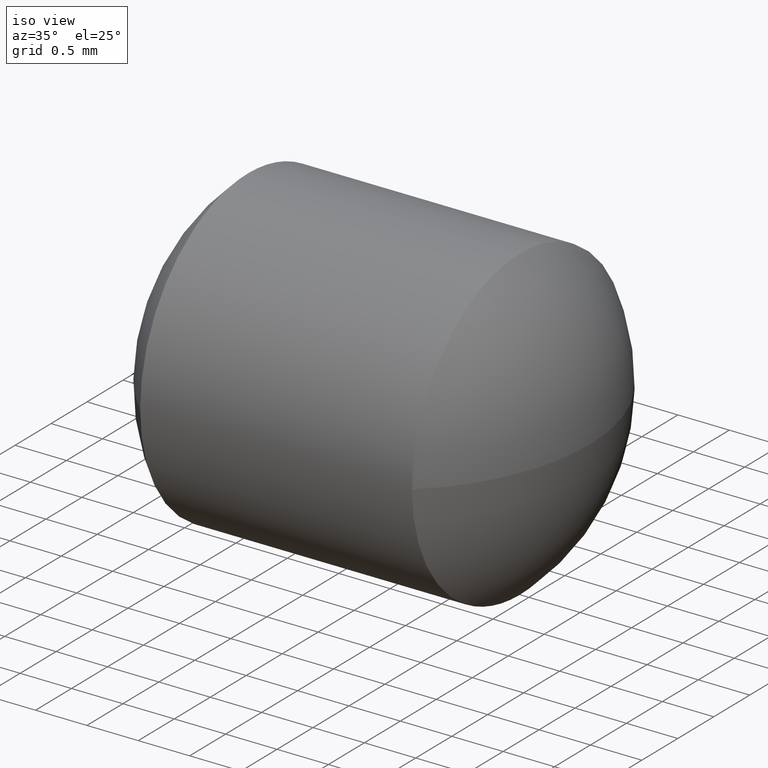
[diagram: clean part render]
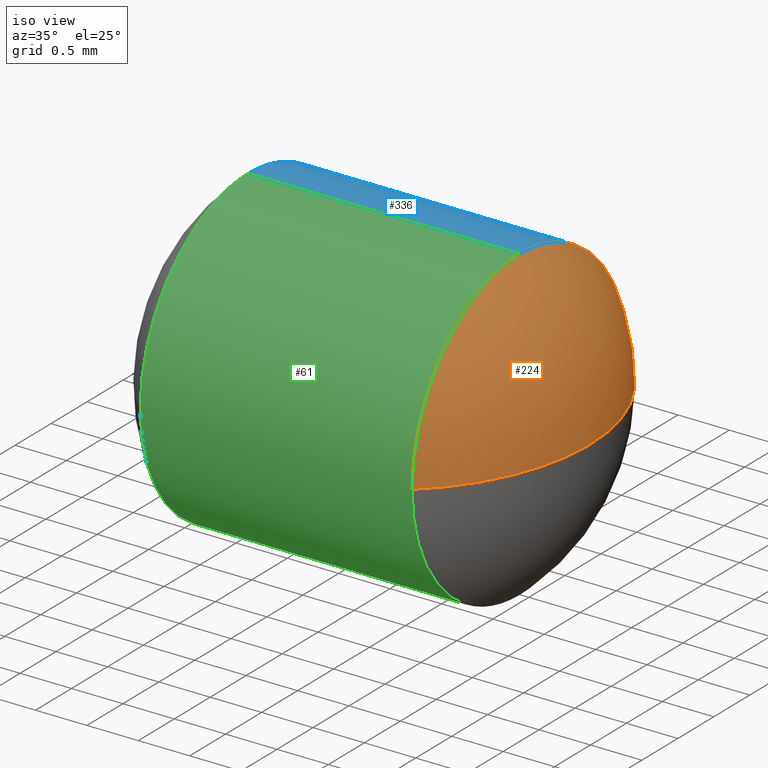
[diagram: same view with three faces highlighted in distinct colors, each labeled with its STEP entity id]
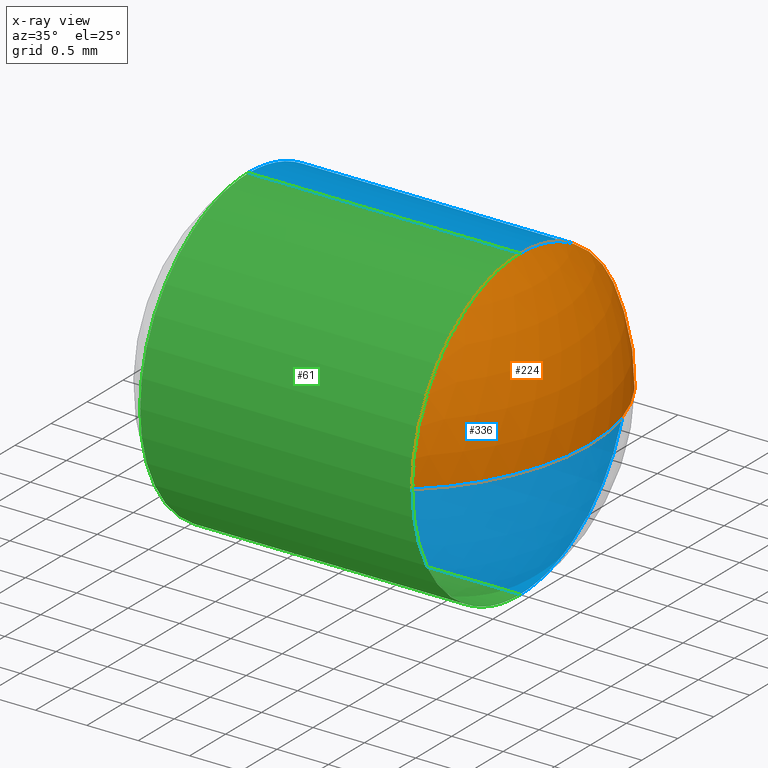
[diagram: x-ray of the same camera — body ghosted, the three highlighted faces saturated]
A machine part, iso view with three faces highlighted in distinct colors.
The next image is the same camera in x-ray (body ghosted, the three faces saturated) — at least one of them is partly hidden behind the body in this view.
Their STEP definitions:

[orange] entity #224 — the highlighted spherical surface has radius 2 mm.
#7 = CIRCLE ( 'NONE', #316, 2.000000000000001800 ) ;
#14 = VERTEX_POINT ( 'NONE', #214 ) ;
#16 = SPHERICAL_SURFACE ( 'NONE', #78, 1.999999999999992200 ) ;
#25 = CARTESIAN_POINT ( 'NONE',  ( 231.6993485743448400, 133.3448637497280600, 0.0000000000000000000 ) ) ;
#27 = VERTEX_POINT ( 'NONE', #340 ) ;
#28 = CARTESIAN_POINT ( 'NONE',  ( 229.6993485743448400, 133.3448637497280600, 0.0000000000000000000 ) ) ;
#57 = CARTESIAN_POINT ( 'NONE',  ( 229.6993485743448400, 133.3448637497280600, 0.0000000000000000000 ) ) ;
#62 = DIRECTION ( 'NONE',  ( 0.0000000000000000000, 1.000000000000000000, 1.224646799147347500E-016 ) ) ;
#72 = CIRCLE ( 'NONE', #73, 1.500000000000029100 ) ;
#73 = AXIS2_PLACEMENT_3D ( 'NONE', #298, #134, #188 ) ;
#75 = CIRCLE ( 'NONE', #287, 2.000000000000001800 ) ;
#78 = AXIS2_PLACEMENT_3D ( 'NONE', #28, #235, #109 ) ;
#89 = CARTESIAN_POINT ( 'NONE',  ( 229.6993485743448400, 133.3448637497280600, 0.0000000000000000000 ) ) ;
#102 = VERTEX_POINT ( 'NONE', #25 ) ;
#107 = ORIENTED_EDGE ( 'NONE', *, *, #237, .F. ) ;
#109 = DIRECTION ( 'NONE',  ( 0.0000000000000000000, 1.000000000000000000, 0.0000000000000000000 ) ) ;
#118 = DIRECTION ( 'NONE',  ( 1.000000000000000000, 0.0000000000000000000, 0.0000000000000000000 ) ) ;
#134 = DIRECTION ( 'NONE',  ( -1.000000000000000000, -0.0000000000000000000, -0.0000000000000000000 ) ) ;
#143 = ORIENTED_EDGE ( 'NONE', *, *, #240, .F. ) ;
#145 = CARTESIAN_POINT ( 'NONE',  ( 231.0222242298770800, 133.3448637497280600, 0.0000000000000000000 ) ) ;
#167 = CARTESIAN_POINT ( 'NONE',  ( 231.0222242298770800, 131.8448637497280300, -1.836970198721071100E-016 ) ) ;
#169 = DIRECTION ( 'NONE',  ( 0.0000000000000000000, 0.0000000000000000000, 1.000000000000000000 ) ) ;
#188 = DIRECTION ( 'NONE',  ( 0.0000000000000000000, 0.0000000000000000000, 1.000000000000000000 ) ) ;
#195 = ORIENTED_EDGE ( 'NONE', *, *, #259, .F. ) ;
#214 = CARTESIAN_POINT ( 'NONE',  ( 231.0222242298770800, 134.8448637497280900, 0.0000000000000000000 ) ) ;
#224 = ADVANCED_FACE ( 'NONE', ( #297 ), #16, .T. ) ;
#235 = DIRECTION ( 'NONE',  ( -0.0000000000000000000, 0.0000000000000000000, -1.000000000000000000 ) ) ;
#237 = EDGE_CURVE ( 'NONE', #27, #14, #72, .T. ) ;
#240 = EDGE_CURVE ( 'NONE', #102, #315, #7, .T. ) ;
#244 = EDGE_LOOP ( 'NONE', ( #143, #265, #107, #195 ) ) ;
#245 = CIRCLE ( 'NONE', #255, 1.500000000000029100 ) ;
#255 = AXIS2_PLACEMENT_3D ( 'NONE', #145, #270, #169 ) ;
#259 = EDGE_CURVE ( 'NONE', #315, #27, #245, .T. ) ;
#265 = ORIENTED_EDGE ( 'NONE', *, *, #331, .T. ) ;
#270 = DIRECTION ( 'NONE',  ( -1.000000000000000000, -0.0000000000000000000, -0.0000000000000000000 ) ) ;
#271 = DIRECTION ( 'NONE',  ( -0.0000000000000000000, 0.0000000000000000000, 1.000000000000000000 ) ) ;
#275 = DIRECTION ( 'NONE',  ( 0.0000000000000000000, 1.224646799147353200E-016, -1.000000000000000000 ) ) ;
#287 = AXIS2_PLACEMENT_3D ( 'NONE', #89, #271, #118 ) ;
#297 = FACE_OUTER_BOUND ( 'NONE', #244, .T. ) ;
#298 = CARTESIAN_POINT ( 'NONE',  ( 231.0222242298770800, 133.3448637497280600, 0.0000000000000000000 ) ) ;
#315 = VERTEX_POINT ( 'NONE', #167 ) ;
#316 = AXIS2_PLACEMENT_3D ( 'NONE', #57, #275, #62 ) ;
#331 = EDGE_CURVE ( 'NONE', #102, #14, #75, .T. ) ;
#340 = CARTESIAN_POINT ( 'NONE',  ( 231.0222242298770800, 133.3448637497280600, 1.500000000000029100 ) ) ;

[blue] entity #336 — the highlighted cylindrical surface (partial cylindrical patch) has radius 1.5 mm, axis along (-1, -0, -0).
#1 = DIRECTION ( 'NONE',  ( -1.000000000000000000, -0.0000000000000000000, -0.0000000000000000000 ) ) ;
#11 = CIRCLE ( 'NONE', #92, 1.500000000000029100 ) ;
#14 = VERTEX_POINT ( 'NONE', #214 ) ;
#15 = DIRECTION ( 'NONE',  ( 0.0000000000000000000, 0.0000000000000000000, 1.000000000000000000 ) ) ;
#22 = EDGE_LOOP ( 'NONE', ( #26, #216, #122, #64, #342, #182 ) ) ;
#24 = AXIS2_PLACEMENT_3D ( 'NONE', #345, #79, #82 ) ;
#26 = ORIENTED_EDGE ( 'NONE', *, *, #237, .T. ) ;
#27 = VERTEX_POINT ( 'NONE', #340 ) ;
#38 = DIRECTION ( 'NONE',  ( -1.000000000000000000, -0.0000000000000000000, -0.0000000000000000000 ) ) ;
#41 = CARTESIAN_POINT ( 'NONE',  ( 228.3764729188125400, 133.3448637497280600, 0.0000000000000000000 ) ) ;
#59 = CARTESIAN_POINT ( 'NONE',  ( 228.3764729188125400, 133.3448637497280600, -1.500000000000001300 ) ) ;
#64 = ORIENTED_EDGE ( 'NONE', *, *, #319, .F. ) ;
#72 = CIRCLE ( 'NONE', #73, 1.500000000000029100 ) ;
#73 = AXIS2_PLACEMENT_3D ( 'NONE', #298, #134, #188 ) ;
#79 = DIRECTION ( 'NONE',  ( -1.000000000000000000, -0.0000000000000000000, -0.0000000000000000000 ) ) ;
#80 = VECTOR ( 'NONE', #1, 1000.000000000000000 ) ;
#82 = DIRECTION ( 'NONE',  ( 0.0000000000000000000, 0.0000000000000000000, 1.000000000000000000 ) ) ;
#85 = CIRCLE ( 'NONE', #261, 1.500000000000001300 ) ;
#90 = VECTOR ( 'NONE', #131, 1000.000000000000000 ) ;
#92 = AXIS2_PLACEMENT_3D ( 'NONE', #93, #277, #194 ) ;
#93 = CARTESIAN_POINT ( 'NONE',  ( 231.0222242298770800, 133.3448637497280600, 0.0000000000000000000 ) ) ;
#119 = DIRECTION ( 'NONE',  ( 0.0000000000000000000, 0.0000000000000000000, 1.000000000000000000 ) ) ;
#122 = ORIENTED_EDGE ( 'NONE', *, *, #205, .T. ) ;
#131 = DIRECTION ( 'NONE',  ( -1.000000000000000000, -0.0000000000000000000, -0.0000000000000000000 ) ) ;
#134 = DIRECTION ( 'NONE',  ( -1.000000000000000000, -0.0000000000000000000, -0.0000000000000000000 ) ) ;
#135 = VERTEX_POINT ( 'NONE', #326 ) ;
#138 = CARTESIAN_POINT ( 'NONE',  ( 231.0222242298770800, 133.3448637497280600, -1.500000000000029300 ) ) ;
#140 = DIRECTION ( 'NONE',  ( -1.000000000000000000, -0.0000000000000000000, -0.0000000000000000000 ) ) ;
#153 = LINE ( 'NONE', #327, #80 ) ;
#156 = CYLINDRICAL_SURFACE ( 'NONE', #338, 1.500000000000015100 ) ;
#161 = LINE ( 'NONE', #293, #90 ) ;
#171 = CARTESIAN_POINT ( 'NONE',  ( 227.5435306962462500, 133.3448637497280600, 0.0000000000000000000 ) ) ;
#182 = ORIENTED_EDGE ( 'NONE', *, *, #222, .F. ) ;
#188 = DIRECTION ( 'NONE',  ( 0.0000000000000000000, 0.0000000000000000000, 1.000000000000000000 ) ) ;
#191 = EDGE_CURVE ( 'NONE', #135, #278, #276, .T. ) ;
#194 = DIRECTION ( 'NONE',  ( 0.0000000000000000000, 0.0000000000000000000, 1.000000000000000000 ) ) ;
#199 = FACE_OUTER_BOUND ( 'NONE', #22, .T. ) ;
#205 = EDGE_CURVE ( 'NONE', #341, #266, #161, .T. ) ;
#214 = CARTESIAN_POINT ( 'NONE',  ( 231.0222242298770800, 134.8448637497280900, 0.0000000000000000000 ) ) ;
#216 = ORIENTED_EDGE ( 'NONE', *, *, #284, .T. ) ;
#220 = CARTESIAN_POINT ( 'NONE',  ( 228.3764729188125400, 134.8448637497280600, 0.0000000000000000000 ) ) ;
#222 = EDGE_CURVE ( 'NONE', #27, #135, #153, .T. ) ;
#237 = EDGE_CURVE ( 'NONE', #27, #14, #72, .T. ) ;
#261 = AXIS2_PLACEMENT_3D ( 'NONE', #41, #38, #119 ) ;
#266 = VERTEX_POINT ( 'NONE', #59 ) ;
#276 = CIRCLE ( 'NONE', #24, 1.500000000000001300 ) ;
#277 = DIRECTION ( 'NONE',  ( -1.000000000000000000, -0.0000000000000000000, -0.0000000000000000000 ) ) ;
#278 = VERTEX_POINT ( 'NONE', #220 ) ;
#284 = EDGE_CURVE ( 'NONE', #14, #341, #11, .T. ) ;
#293 = CARTESIAN_POINT ( 'NONE',  ( 227.5435306962462500, 133.3448637497280600, -1.500000000000015100 ) ) ;
#298 = CARTESIAN_POINT ( 'NONE',  ( 231.0222242298770800, 133.3448637497280600, 0.0000000000000000000 ) ) ;
#319 = EDGE_CURVE ( 'NONE', #278, #266, #85, .T. ) ;
#326 = CARTESIAN_POINT ( 'NONE',  ( 228.3764729188125400, 133.3448637497280600, 1.500000000000001300 ) ) ;
#327 = CARTESIAN_POINT ( 'NONE',  ( 227.5435306962462500, 133.3448637497280600, 1.500000000000015100 ) ) ;
#336 = ADVANCED_FACE ( 'NONE', ( #199 ), #156, .T. ) ;
#338 = AXIS2_PLACEMENT_3D ( 'NONE', #171, #140, #15 ) ;
#340 = CARTESIAN_POINT ( 'NONE',  ( 231.0222242298770800, 133.3448637497280600, 1.500000000000029100 ) ) ;
#341 = VERTEX_POINT ( 'NONE', #138 ) ;
#342 = ORIENTED_EDGE ( 'NONE', *, *, #191, .F. ) ;
#345 = CARTESIAN_POINT ( 'NONE',  ( 228.3764729188125400, 133.3448637497280600, 0.0000000000000000000 ) ) ;

[green] entity #61 — the highlighted cylindrical surface (partial cylindrical patch) has radius 1.5 mm, axis along (-1, -0, -0).
#1 = DIRECTION ( 'NONE',  ( -1.000000000000000000, -0.0000000000000000000, -0.0000000000000000000 ) ) ;
#9 = VERTEX_POINT ( 'NONE', #54 ) ;
#12 = AXIS2_PLACEMENT_3D ( 'NONE', #246, #307, #193 ) ;
#27 = VERTEX_POINT ( 'NONE', #340 ) ;
#36 = ORIENTED_EDGE ( 'NONE', *, *, #259, .T. ) ;
#40 = AXIS2_PLACEMENT_3D ( 'NONE', #105, #132, #184 ) ;
#54 = CARTESIAN_POINT ( 'NONE',  ( 228.3764729188125400, 131.8448637497280600, -1.836970198721032200E-016 ) ) ;
#59 = CARTESIAN_POINT ( 'NONE',  ( 228.3764729188125400, 133.3448637497280600, -1.500000000000001300 ) ) ;
#61 = ADVANCED_FACE ( 'NONE', ( #74 ), #217, .T. ) ;
#74 = FACE_OUTER_BOUND ( 'NONE', #250, .T. ) ;
#80 = VECTOR ( 'NONE', #1, 1000.000000000000000 ) ;
#90 = VECTOR ( 'NONE', #131, 1000.000000000000000 ) ;
#101 = CARTESIAN_POINT ( 'NONE',  ( 227.5435306962462500, 133.3448637497280600, 0.0000000000000000000 ) ) ;
#105 = CARTESIAN_POINT ( 'NONE',  ( 231.0222242298770800, 133.3448637497280600, 0.0000000000000000000 ) ) ;
#111 = AXIS2_PLACEMENT_3D ( 'NONE', #329, #120, #172 ) ;
#115 = ORIENTED_EDGE ( 'NONE', *, *, #222, .T. ) ;
#120 = DIRECTION ( 'NONE',  ( -1.000000000000000000, -0.0000000000000000000, -0.0000000000000000000 ) ) ;
#131 = DIRECTION ( 'NONE',  ( -1.000000000000000000, -0.0000000000000000000, -0.0000000000000000000 ) ) ;
#132 = DIRECTION ( 'NONE',  ( -1.000000000000000000, -0.0000000000000000000, -0.0000000000000000000 ) ) ;
#135 = VERTEX_POINT ( 'NONE', #326 ) ;
#138 = CARTESIAN_POINT ( 'NONE',  ( 231.0222242298770800, 133.3448637497280600, -1.500000000000029300 ) ) ;
#145 = CARTESIAN_POINT ( 'NONE',  ( 231.0222242298770800, 133.3448637497280600, 0.0000000000000000000 ) ) ;
#153 = LINE ( 'NONE', #327, #80 ) ;
#161 = LINE ( 'NONE', #293, #90 ) ;
#167 = CARTESIAN_POINT ( 'NONE',  ( 231.0222242298770800, 131.8448637497280300, -1.836970198721071100E-016 ) ) ;
#169 = DIRECTION ( 'NONE',  ( 0.0000000000000000000, 0.0000000000000000000, 1.000000000000000000 ) ) ;
#172 = DIRECTION ( 'NONE',  ( 0.0000000000000000000, 0.0000000000000000000, 1.000000000000000000 ) ) ;
#180 = DIRECTION ( 'NONE',  ( -1.000000000000000000, -0.0000000000000000000, -0.0000000000000000000 ) ) ;
#184 = DIRECTION ( 'NONE',  ( 0.0000000000000000000, 0.0000000000000000000, 1.000000000000000000 ) ) ;
#193 = DIRECTION ( 'NONE',  ( 0.0000000000000000000, 0.0000000000000000000, 1.000000000000000000 ) ) ;
#197 = ORIENTED_EDGE ( 'NONE', *, *, #299, .F. ) ;
#202 = ORIENTED_EDGE ( 'NONE', *, *, #218, .T. ) ;
#205 = EDGE_CURVE ( 'NONE', #341, #266, #161, .T. ) ;
#211 = CIRCLE ( 'NONE', #40, 1.500000000000029100 ) ;
#217 = CYLINDRICAL_SURFACE ( 'NONE', #274, 1.500000000000015100 ) ;
#218 = EDGE_CURVE ( 'NONE', #341, #315, #211, .T. ) ;
#222 = EDGE_CURVE ( 'NONE', #27, #135, #153, .T. ) ;
#229 = CIRCLE ( 'NONE', #12, 1.500000000000001300 ) ;
#234 = ORIENTED_EDGE ( 'NONE', *, *, #205, .F. ) ;
#245 = CIRCLE ( 'NONE', #255, 1.500000000000029100 ) ;
#246 = CARTESIAN_POINT ( 'NONE',  ( 228.3764729188125400, 133.3448637497280600, 0.0000000000000000000 ) ) ;
#250 = EDGE_LOOP ( 'NONE', ( #234, #202, #36, #115, #301, #197 ) ) ;
#255 = AXIS2_PLACEMENT_3D ( 'NONE', #145, #270, #169 ) ;
#259 = EDGE_CURVE ( 'NONE', #315, #27, #245, .T. ) ;
#266 = VERTEX_POINT ( 'NONE', #59 ) ;
#270 = DIRECTION ( 'NONE',  ( -1.000000000000000000, -0.0000000000000000000, -0.0000000000000000000 ) ) ;
#274 = AXIS2_PLACEMENT_3D ( 'NONE', #101, #180, #290 ) ;
#290 = DIRECTION ( 'NONE',  ( 0.0000000000000000000, 0.0000000000000000000, 1.000000000000000000 ) ) ;
#293 = CARTESIAN_POINT ( 'NONE',  ( 227.5435306962462500, 133.3448637497280600, -1.500000000000015100 ) ) ;
#299 = EDGE_CURVE ( 'NONE', #266, #9, #229, .T. ) ;
#300 = EDGE_CURVE ( 'NONE', #9, #135, #324, .T. ) ;
#301 = ORIENTED_EDGE ( 'NONE', *, *, #300, .F. ) ;
#307 = DIRECTION ( 'NONE',  ( -1.000000000000000000, -0.0000000000000000000, -0.0000000000000000000 ) ) ;
#315 = VERTEX_POINT ( 'NONE', #167 ) ;
#324 = CIRCLE ( 'NONE', #111, 1.500000000000001300 ) ;
#326 = CARTESIAN_POINT ( 'NONE',  ( 228.3764729188125400, 133.3448637497280600, 1.500000000000001300 ) ) ;
#327 = CARTESIAN_POINT ( 'NONE',  ( 227.5435306962462500, 133.3448637497280600, 1.500000000000015100 ) ) ;
#329 = CARTESIAN_POINT ( 'NONE',  ( 228.3764729188125400, 133.3448637497280600, 0.0000000000000000000 ) ) ;
#340 = CARTESIAN_POINT ( 'NONE',  ( 231.0222242298770800, 133.3448637497280600, 1.500000000000029100 ) ) ;
#341 = VERTEX_POINT ( 'NONE', #138 ) ;